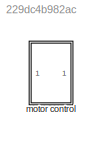
MODEL slx_229dc4b982ac
KIND model
CONFIG AbsTol = auto
CONFIG EnableMultiTasking = off
CONFIG FixedStep = auto
CONFIG MaxStep = auto
CONFIG MinStep = auto
CONFIG RelTol = 1e-3
CONFIG SampleTimeConstraint = Unconstrained
CONFIG Solver = VariableStepAuto
CONFIG SolverName = VariableStepAuto
CONFIG StartTime = 0.0
CONFIG StopTime = 10.0
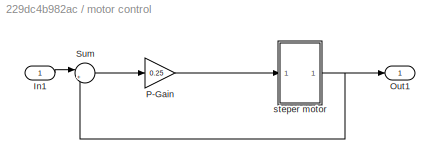
BLOCK [SubSystem] motor control
  Ports = [1, 1]
  RequestExecContextInheritance = off
BLOCK [Inport] motor control/In1
  IconDisplay = Port number
BLOCK [Outport] motor control/Out1
  IconDisplay = Port number
BLOCK [Gain] motor control/P-Gain
  Gain = 0.25
  OutDataTypeStr = Inherit: Inherit via internal rule
  ParamDataTypeStr = Inherit: Inherit via internal rule
  SaturateOnIntegerOverflow = off
BLOCK [Sum] motor control/Sum
  IconShape = round
  InputSameDT = off
  Inputs = |+-
  OutDataTypeStr = Inherit: Inherit via internal rule
  Ports = [2, 1]
  SaturateOnIntegerOverflow = off
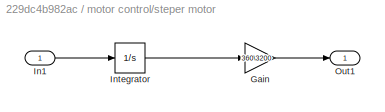
BLOCK [SubSystem] motor control/steper motor
  Ports = [1, 1]
  RequestExecContextInheritance = off
BLOCK [Gain] motor control/steper motor/Gain
  Gain = 360\3200
  OutDataTypeStr = Inherit: Inherit via internal rule
  ParamDataTypeStr = Inherit: Inherit via internal rule
  SaturateOnIntegerOverflow = off
BLOCK [Inport] motor control/steper motor/In1
  IconDisplay = Port number
BLOCK [Integrator] motor control/steper motor/Integrator
  Ports = [1, 1]
BLOCK [Outport] motor control/steper motor/Out1
  IconDisplay = Port number
LINE motor control/In1:1 -> motor control/Sum:1
LINE motor control/P-Gain:1 -> motor control/steper motor:1
LINE motor control/Sum:1 -> motor control/P-Gain:1
LINE motor control/steper motor/Gain:1 -> motor control/steper motor/Out1:1
LINE motor control/steper motor/In1:1 -> motor control/steper motor/Integrator:1
LINE motor control/steper motor/Integrator:1 -> motor control/steper motor/Gain:1
NET motor control/steper motor:1 -> motor control/Out1:1, motor control/Sum:2
note: NET lines group one-source signal fan-out (src -> all destinations, sorted); 1:1 wires keep LINE
